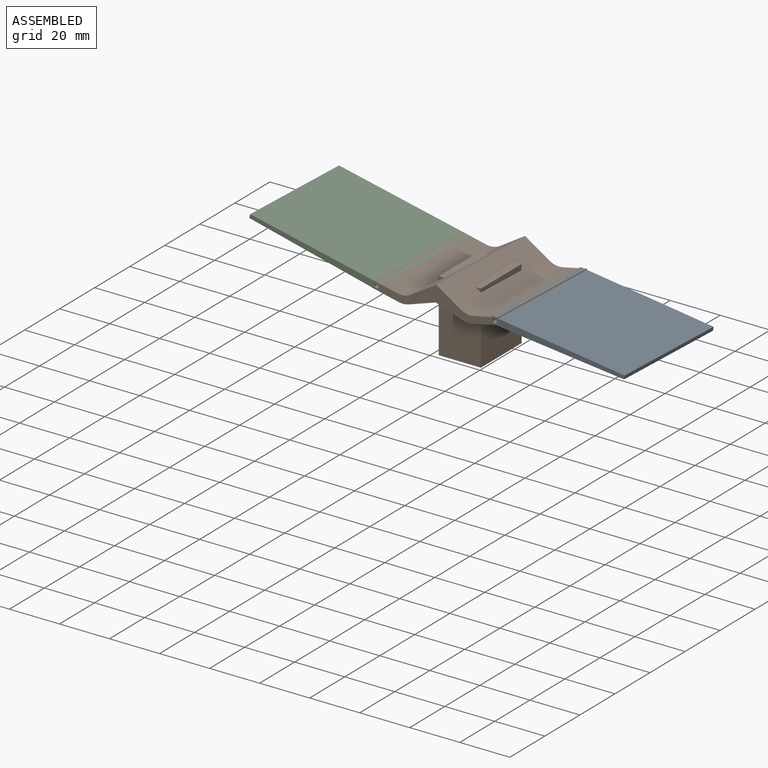
[diagram: assembled view]
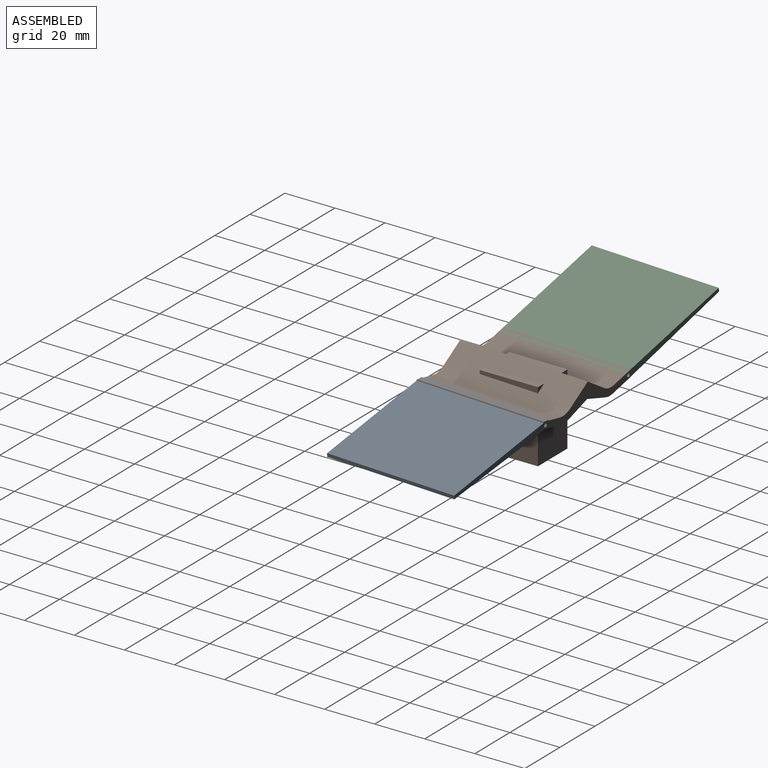
[diagram: assembled view, second angle]
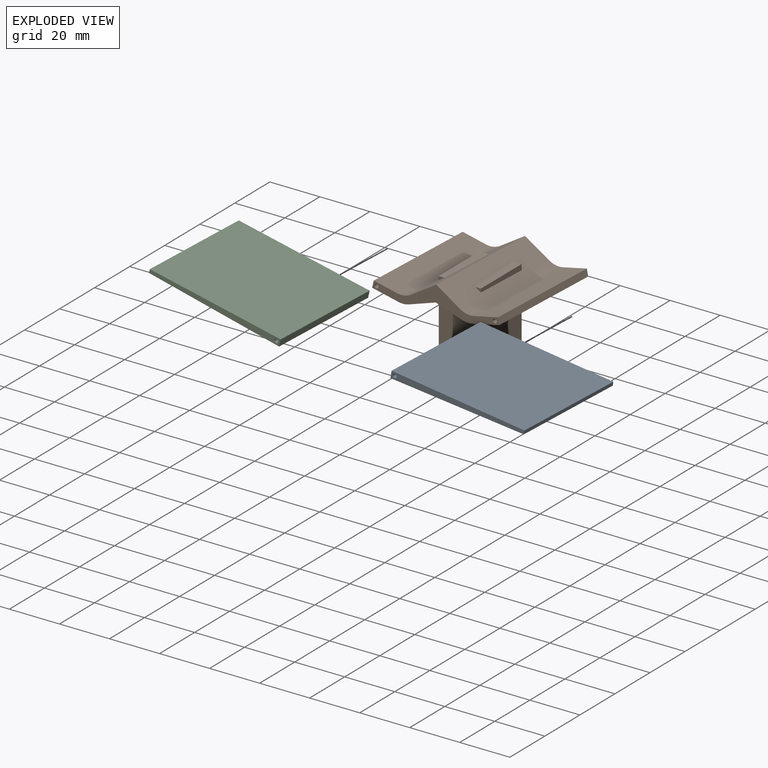
[diagram: exploded view]
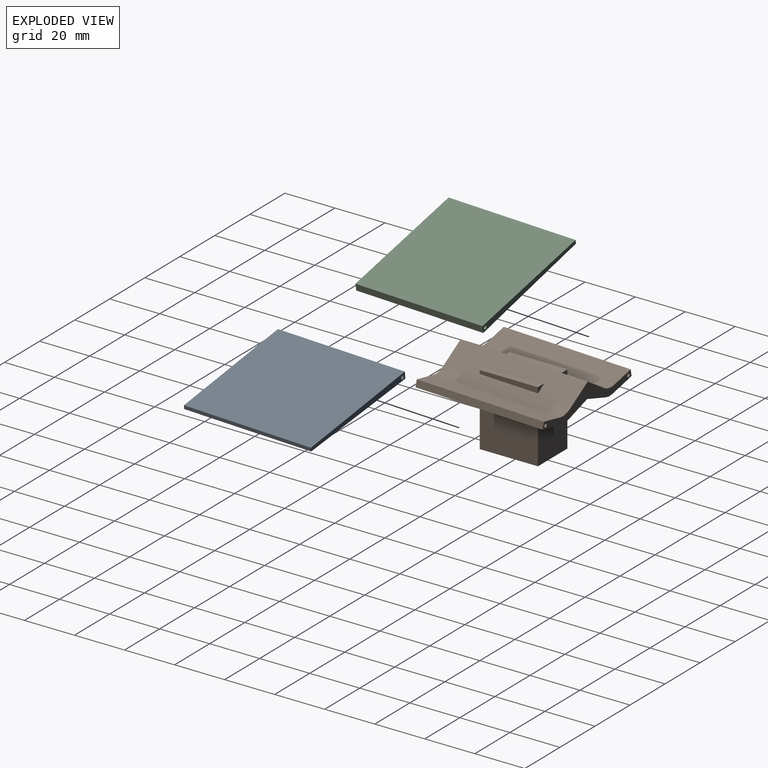
[diagram: exploded view, second angle]
ASSEMBLY  parts=3 mates=2
PART A: 13 faces, bbox 52.9x51.3x15.9 mm
  f0: plane 50.86x4.46mm, normal (-0.98,-0.01,-0.21), area 139.9mm2, adj f1,f3,f4,f5
  f1: plane 52.27x51.21mm, normal (0.24,-0.03,-0.97), area 2719.7mm2, adj f0,f2,f4,f5,f7,f8,f9,f10
  f2: plane 50.82x3.19mm, normal (0.98,0.01,0.21), area 73.9mm2, adj f1,f3,f4,f5
  f3: plane 52.54x51.17mm, normal (-0.21,0.03,0.98), area 2731.3mm2, adj f0,f2,f4,f5
  f4: plane 52.85x14.08mm, normal (0,1,-0.03), area 111.2mm2, adj f0,f1,f2,f3,f6
  f5: plane 52.85x14.08mm, normal (0,-1,0.03), area 111.2mm2, adj f0,f1,f2,f3,f6
  f6: cylinder r=0.78mm len=50.82mm, axis (0,-1,0.03), area 247.8mm2, adj f4,f5
  f7: plane 7.29x6.12mm, normal (0,1,-0.03), area 23.8mm2, adj f1,f8,f10,f11,f12
  f8: plane 4.69x2.1mm, normal (-0.97,-0.01,-0.24), area 9.3mm2, adj f1,f7,f9,f11
  f9: plane 7.29x6.12mm, normal (0,-1,0.03), area 23.8mm2, adj f1,f8,f10,f11,f12
  f10: plane 4.69x2.1mm, normal (0.97,0.01,0.24), area 9.3mm2, adj f1,f7,f9,f11
  f11: plane 6.17x1.99mm, normal (0.24,-0.03,-0.97), area 12.3mm2, adj f7,f8,f9,f10
  f12: cylinder r=1.43mm len=2.93mm, axis (0,-1,0.03), area 17.5mm2, adj f7,f9
PART B: 34 faces, bbox 50.8x51.1x32.9 mm
  f0: plane 50.98x9.77mm, normal (-0.53,0.03,0.85), area 506.1mm2, adj f2,f8,f9,f10,f30,f31,f32,f33
  f1: plane 50.89x10.73mm, normal (0.31,-0.03,-0.95), area 367.8mm2, adj f3,f4,f9,f10,f21,f22,f23
  f2: plane 50.98x9.77mm, normal (0.53,0.03,0.85), area 506.1mm2, adj f0,f9,f10,f16,f26,f27,f28,f29
  f3: plane 50.89x10.73mm, normal (-0.31,-0.03,-0.95), area 367.8mm2, adj f1,f9,f10,f12,f19,f21,f23
  f4: cylinder r=7.62mm len=50.78mm, axis (0,-1,0.03), area 205.8mm2, adj f1,f5,f9,f10
  f5: plane 50.85x10.67mm, normal (-0.21,-0.03,-0.98), area 554.8mm2, adj f4,f6,f9,f10
  f6: plane 50.86x4.46mm, normal (-0.98,0.01,0.21), area 139.9mm2, adj f5,f7,f9,f10
  f7: plane 50.84x9.38mm, normal (0.21,0.03,0.98), area 487.6mm2, adj f6,f8,f9,f10
  f8: cylinder r=7.62mm len=50.81mm, axis (0,-1,0.03), area 299.5mm2, adj f0,f7,f9,f10
  f9: plane 50.8x10.26mm, normal (0,1,-0.03), area 181.1mm2, adj f0,f1,f2,f3,f4,f5,f6,f7
  f10: plane 50.8x10.26mm, normal (0,-1,0.03), area 181.1mm2, adj f0,f1,f2,f3,f4,f5,f6,f7
  f11: cylinder r=0.78mm len=50.82mm, axis (0,-1,0.03), area 247.8mm2, adj f9,f10
  f12: cylinder r=7.62mm len=50.78mm, axis (0,-1,0.03), area 205.8mm2, adj f3,f9,f10,f13
  f13: plane 50.85x10.67mm, normal (0.21,-0.03,-0.98), area 554.8mm2, adj f9,f10,f12,f14
  f14: plane 50.86x4.46mm, normal (0.98,0.01,0.21), area 139.9mm2, adj f9,f10,f13,f15
  f15: plane 50.84x9.38mm, normal (-0.21,0.03,0.98), area 487.6mm2, adj f9,f10,f14,f16
  f16: cylinder r=7.62mm len=50.81mm, axis (0,-1,0.03), area 299.5mm2, adj f2,f9,f10,f15
  f17: cylinder r=0.78mm len=50.82mm, axis (0,-1,0.03), area 247.8mm2, adj f9,f10
  f18: plane 23.24x16.83mm, normal (0,0,-1), area 365.2mm2, adj f19,f20,f21,f22,f23
  f19: plane 23.31x23.24mm, normal (1,0,0), area 532.3mm2, adj f3,f18,f21,f23
  f20: cylinder r=2.87mm len=25.77mm, axis (0,0,1), area 451.9mm2, adj f18,f24,f25
  f21: plane 26.08x16.83mm, normal (0,-1,0), area 415.5mm2, adj f1,f3,f18,f19,f22
  f22: plane 23.31x23.24mm, normal (-1,0,0), area 532.3mm2, adj f1,f18,f21,f23
  f23: plane 25.27x16.83mm, normal (0,1,0), area 401.9mm2, adj f1,f3,f18,f19,f22
  f24: plane 5.74x2.87mm, normal (-0.31,-0.03,-0.95), area 13.6mm2, adj f20,f25
  f25: plane 5.74x2.87mm, normal (0.31,-0.03,-0.95), area 13.6mm2, adj f20,f24
  f26: plane 23.24x3.56mm, normal (0,0,1), area 67.7mm2, adj f2,f27,f28,f29
  f27: plane 23.24x2.23mm, normal (1,0,0), area 42.5mm2, adj f2,f26,f28,f29
  f28: plane 2.27x1.42mm, normal (0,-1,0), area 1.6mm2, adj f2,f26,f27
  f29: plane 3.56x2.23mm, normal (0,1,0), area 4mm2, adj f2,f26,f27
  f30: plane 23.24x2.23mm, normal (-1,0,0), area 42.5mm2, adj f0,f31,f32,f33
  f31: plane 23.24x3.56mm, normal (0,0,1), area 67.7mm2, adj f0,f30,f32,f33
  f32: plane 3.56x2.23mm, normal (0,1,0), area 4mm2, adj f0,f30,f31
  f33: plane 2.27x1.42mm, normal (0,-1,0), area 1.6mm2, adj f0,f30,f31
PART C: 13 faces, bbox 52.9x51.3x15.9 mm
  f0: plane 50.86x4.46mm, normal (0.98,-0.01,-0.21), area 139.9mm2, adj f1,f3,f4,f5
  f1: plane 52.27x51.21mm, normal (-0.24,-0.03,-0.97), area 2719.7mm2, adj f0,f2,f4,f5,f7,f8,f9,f10
  f2: plane 50.82x3.19mm, normal (-0.98,0.01,0.21), area 73.9mm2, adj f1,f3,f4,f5
  f3: plane 52.54x51.17mm, normal (0.21,0.03,0.98), area 2731.3mm2, adj f0,f2,f4,f5
  f4: plane 52.85x14.08mm, normal (0,1,-0.03), area 111.2mm2, adj f0,f1,f2,f3,f6
  f5: plane 52.85x14.08mm, normal (0,-1,0.03), area 111.2mm2, adj f0,f1,f2,f3,f6
  f6: cylinder r=0.78mm len=50.82mm, axis (0,-1,0.03), area 247.8mm2, adj f4,f5
  f7: plane 7.29x6.12mm, normal (0,1,-0.03), area 23.8mm2, adj f1,f8,f10,f11,f12
  f8: plane 4.69x2.1mm, normal (0.97,-0.01,-0.24), area 9.3mm2, adj f1,f7,f9,f11
  f9: plane 7.29x6.12mm, normal (0,-1,0.03), area 23.8mm2, adj f1,f8,f10,f11,f12
  f10: plane 4.69x2.1mm, normal (-0.97,0.01,0.24), area 9.3mm2, adj f1,f7,f9,f11
  f11: plane 6.17x1.99mm, normal (-0.24,-0.03,-0.97), area 12.3mm2, adj f7,f8,f9,f10
  f12: cylinder r=1.43mm len=2.93mm, axis (0,-1,0.03), area 17.5mm2, adj f7,f9
PLACE A rot(axis=(0,1,-0.03),20deg) t=(4.19,-16.18,21.29)mm
PLACE B t=(1.94,-16.46,13.36)mm fixed
PLACE C rot(axis=(0,-1,0.03),0.2deg) t=(1.93,-16.45,13.46)mm
MATE revolute A.f6 <-> B.f17  axis (0,-1,0.03) through (25.6,-16.54,10.95)mm
MATE revolute B.f11 <-> C.f6  axis (0,-1,0.03) through (-21.72,-16.54,10.95)mm
